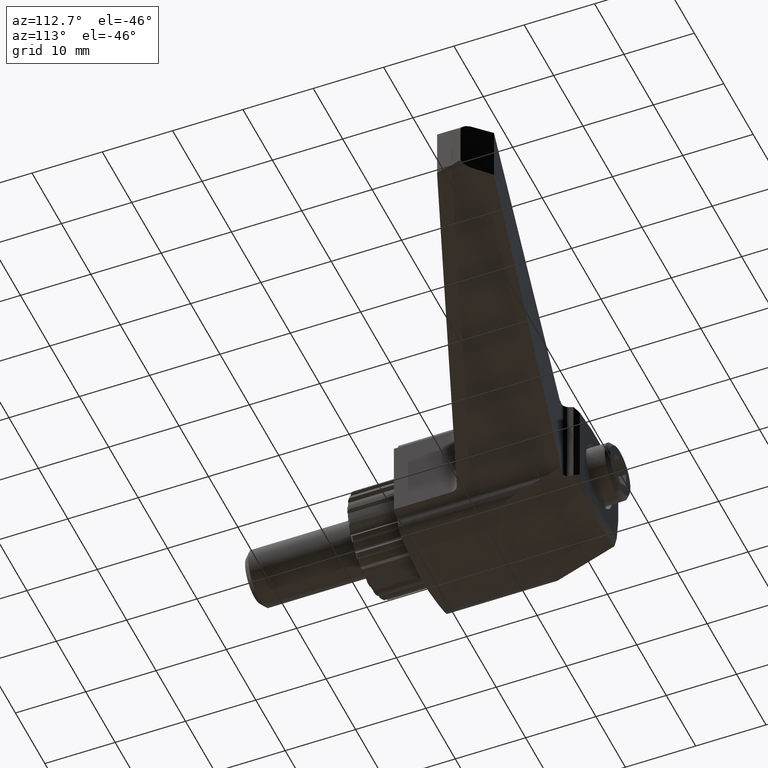
[diagram: clean part render]
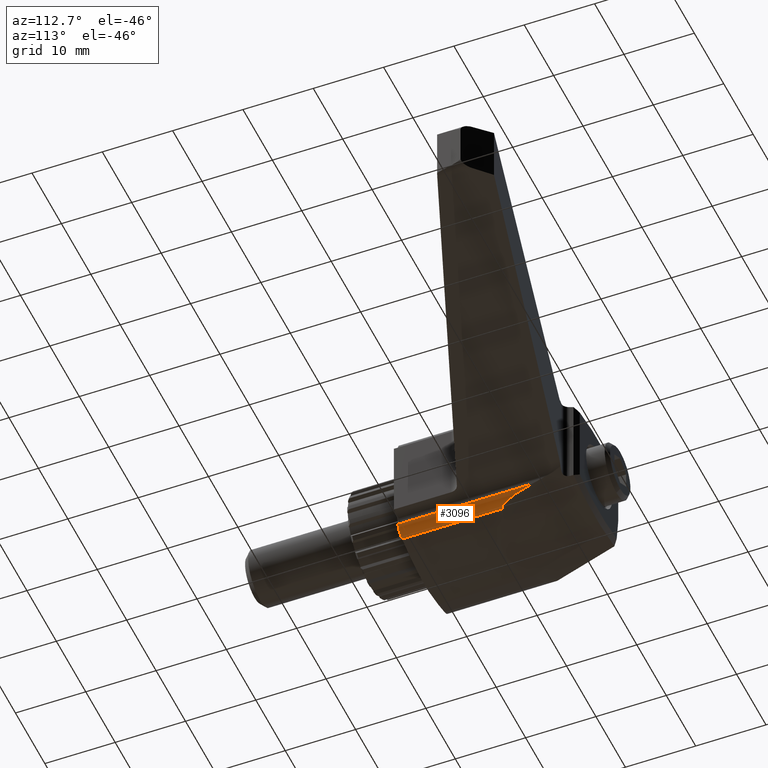
[diagram: same view with one face highlighted and labeled with its STEP entity id]
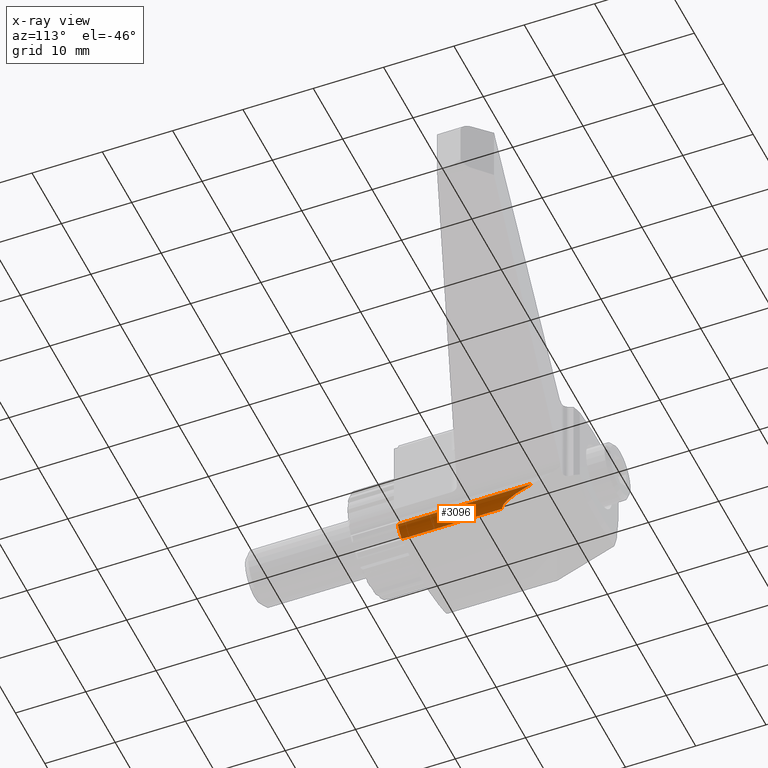
[diagram: x-ray of the same camera — body ghosted, the highlighted face saturated]
A machine part, auxiliary view. The second image highlights one B-rep face of the part: STEP entity #3096.
The next image is the same camera in x-ray: the body ghosted, the highlighted face saturated — about 0% of this face is hidden behind the body in this view.
In plain terms, the highlighted cylindrical surface (edge-blend (fillet) strip) has radius 2.07 mm, axis along (0, 1, 0).
Its self-contained STEP definition (entity closure, byte-faithful):
#32=B_SPLINE_CURVE_WITH_KNOTS('',3,(#5213,#5214,#5215,#5216,#5217,#5218,
#5219,#5220,#5221,#5222,#5223,#5224,#5225,#5226),.UNSPECIFIED.,.F.,.F.,
(4,2,2,2,2,2,4),(-1.01407423824861,-1.00783335760039,-0.989094278958698,
-0.951616121675305,-0.821033039437419,-0.690449957199532,-0.502248032623121),
 .UNSPECIFIED.);
#174=CYLINDRICAL_SURFACE('',#3416,2.07);
#426=LINE('',#5433,#667);
#427=LINE('',#5439,#668);
#667=VECTOR('',#4239,19.021569707013);
#668=VECTOR('',#4248,14.2240588453988);
#811=FACE_OUTER_BOUND('',#992,.T.);
#992=EDGE_LOOP('',(#2711,#2712,#2713,#2714));
#1040=CIRCLE('',#3147,2.07);
#1193=VERTEX_POINT('',#4387);
#1194=VERTEX_POINT('',#4389);
#1439=VERTEX_POINT('',#5210);
#1440=VERTEX_POINT('',#5212);
#1505=EDGE_CURVE('',#1193,#1194,#1040,.F.);
#1864=EDGE_CURVE('',#1440,#1439,#32,.T.);
#1919=EDGE_CURVE('',#1439,#1194,#426,.T.);
#1922=EDGE_CURVE('',#1440,#1193,#427,.T.);
#2711=ORIENTED_EDGE('',*,*,#1922,.F.);
#2712=ORIENTED_EDGE('',*,*,#1864,.T.);
#2713=ORIENTED_EDGE('',*,*,#1919,.T.);
#2714=ORIENTED_EDGE('',*,*,#1505,.F.);
#3096=ADVANCED_FACE('',(#811),#174,.T.);
#3147=AXIS2_PLACEMENT_3D('',#4390,#3494,#3495);
#3416=AXIS2_PLACEMENT_3D('',#5438,#4246,#4247);
#3494=DIRECTION('center_axis',(0.,1.,0.));
#3495=DIRECTION('ref_axis',(-1.,0.,0.));
#4239=DIRECTION('',(0.,-1.,0.));
#4246=DIRECTION('center_axis',(0.,1.,0.));
#4247=DIRECTION('ref_axis',(0.,0.,-1.));
#4248=DIRECTION('',(0.,-1.,0.));
#4387=CARTESIAN_POINT('',(7.24016140570836,8.,-8.65737632033216));
#4389=CARTESIAN_POINT('',(8.65737632033215,8.,-7.24016140570835));
#4390=CARTESIAN_POINT('Origin',(6.66801694658914,8.,-6.66801694658914));
#5210=CARTESIAN_POINT('',(8.65737632033215,27.021569707013,-7.24016140570835));
#5212=CARTESIAN_POINT('',(7.24016140570837,22.2240588453988,-8.65737632033215));
#5213=CARTESIAN_POINT('Ctrl Pts',(7.24016140570834,22.2240588453989,-8.65737632033215));
#5214=CARTESIAN_POINT('Ctrl Pts',(7.25919046629445,22.2291990077607,-8.6519035175192));
#5215=CARTESIAN_POINT('Ctrl Pts',(7.27787981825127,22.2355207660978,-8.64623220621372));
#5216=CARTESIAN_POINT('Ctrl Pts',(7.35125519654425,22.2650798038825,-8.62286425685562));
#5217=CARTESIAN_POINT('Ctrl Pts',(7.40305346321064,22.2969075083556,-8.6038191858738));
#5218=CARTESIAN_POINT('Ctrl Pts',(7.54758866384498,22.4112931651436,-8.54474001144089));
#5219=CARTESIAN_POINT('Ctrl Pts',(7.62956514446385,22.5128528794798,-8.50271978486236));
#5220=CARTESIAN_POINT('Ctrl Pts',(7.92625367714234,22.9567107219588,-8.33302948029891));
#5221=CARTESIAN_POINT('Ctrl Pts',(8.06814554028987,23.3828674934258,-8.20254464414874));
#5222=CARTESIAN_POINT('Ctrl Pts',(8.30448202453837,24.2598898966234,-7.94750752846989));
#5223=CARTESIAN_POINT('Ctrl Pts',(8.38959218896825,24.7136576173722,-7.82438061355341));
#5224=CARTESIAN_POINT('Ctrl Pts',(8.5462450807166,25.7301289929773,-7.55717274946));
#5225=CARTESIAN_POINT('Ctrl Pts',(8.61202170723362,26.3670359336849,-7.39786043306402));
#5226=CARTESIAN_POINT('Ctrl Pts',(8.65737632033214,27.021569707013,-7.24016140570838));
#5433=CARTESIAN_POINT('',(8.65737632033215,27.021569707013,-7.24016140570835));
#5438=CARTESIAN_POINT('Origin',(6.66801694658914,43.1,-6.66801694658914));
#5439=CARTESIAN_POINT('',(7.24016140570836,22.2240588453988,-8.65737632033216));